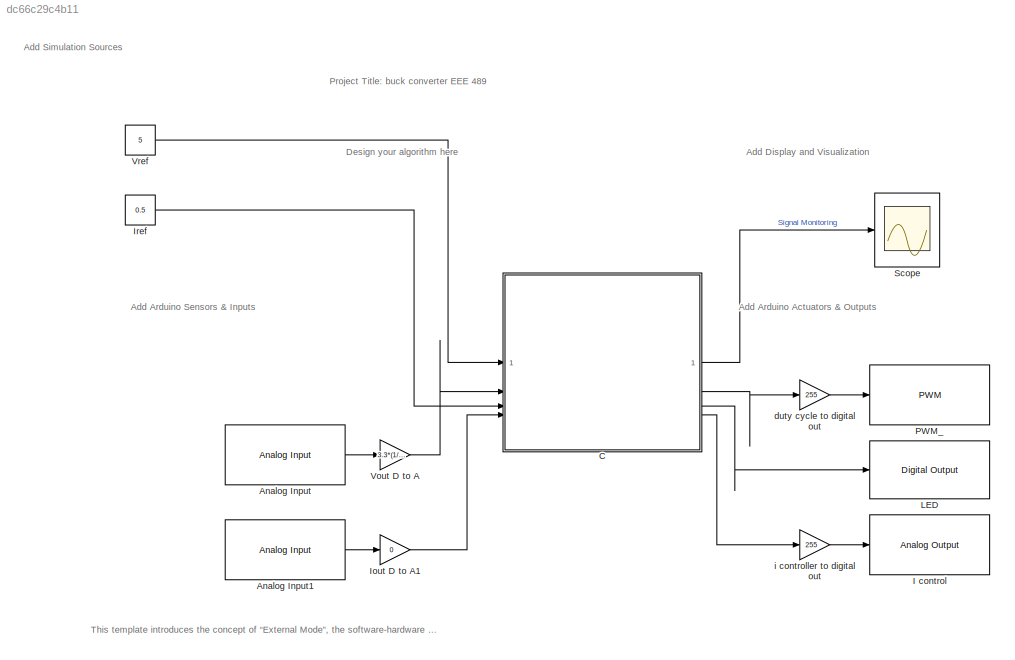
MODEL slx_dc66c29c4b11
KIND model
CONFIG AbsTol = auto
CONFIG EnableMultiTasking = on
CONFIG FixedStep = auto
CONFIG MaxStep = auto
CONFIG MinStep = auto
CONFIG RelTol = 1e-3
CONFIG SampleTimeConstraint = Unconstrained
CONFIG SolverName = ode4
CONFIG StartTime = 0.0
CONFIG StopTime = inf
BLOCK [Reference] Analog Input  REF=arduinolib/Analog Input
  SourceBlock = arduinolib/Analog Input
  SourceType = Arduino Analog Input
BLOCK [Reference] Analog Input1  REF=arduinolib/Analog Input
  Commented = on
  SourceBlock = arduinolib/Analog Input
  SourceType = Arduino Analog Input
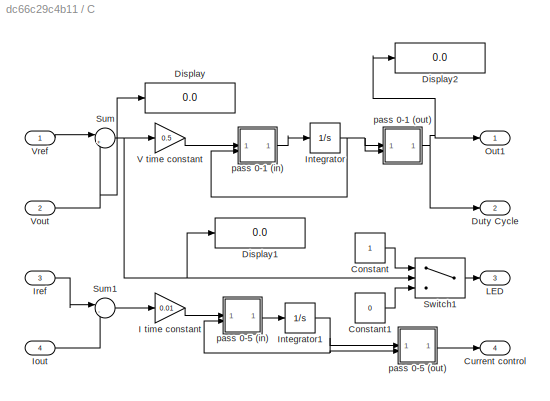
BLOCK [SubSystem] C
BLOCK [Constant] C/Constant
BLOCK [Constant] C/Constant1
  Value = 0
BLOCK [Outport] C/Current control
  Port = 4
  VectorParamsAs1DForOutWhenUnconnected = off
BLOCK [Display] C/Display
  Decimation = 1
BLOCK [Display] C/Display1
  Decimation = 1
BLOCK [Display] C/Display2
  Decimation = 1
BLOCK [Outport] C/Duty Cycle
  Port = 2
  VectorParamsAs1DForOutWhenUnconnected = off
BLOCK [Gain] C/I time constant
  Commented = on
  Gain = 0.01
BLOCK [Integrator] C/Integrator
  InitialCondition = 0.5
BLOCK [Integrator] C/Integrator1
  Commented = on
  InitialCondition = 0.5
BLOCK [Inport] C/Iout
  Port = 4
BLOCK [Inport] C/Iref
  Port = 3
BLOCK [Outport] C/LED
  Port = 3
  VectorParamsAs1DForOutWhenUnconnected = off
BLOCK [Outport] C/Out1
  VectorParamsAs1DForOutWhenUnconnected = off
BLOCK [Sum] C/Sum
  Inputs = |+-
BLOCK [Sum] C/Sum1
  Commented = on
  Inputs = |-+
BLOCK [Switch] C/Switch1
  Criteria = u2 > Threshold
  InputSameDT = off
  SaturateOnIntegerOverflow = off
BLOCK [Gain] C/V time constant
  Gain = 0.5
BLOCK [Inport] C/Vout
  Port = 2
BLOCK [Inport] C/Vref
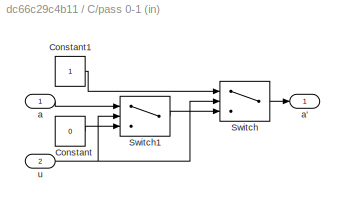
BLOCK [SubSystem] C/pass 0-1 (in)
BLOCK [Constant] C/pass 0-1 (in)/Constant
  Value = 0
BLOCK [Constant] C/pass 0-1 (in)/Constant1
BLOCK [Switch] C/pass 0-1 (in)/Switch
  Criteria = u2 > Threshold
  InputSameDT = off
  SaturateOnIntegerOverflow = off
  Threshold = 1
BLOCK [Switch] C/pass 0-1 (in)/Switch1
  Criteria = u2 > Threshold
  InputSameDT = off
  SaturateOnIntegerOverflow = off
BLOCK [Inport] C/pass 0-1 (in)/a
BLOCK [Outport] C/pass 0-1 (in)/a'
BLOCK [Inport] C/pass 0-1 (in)/u
  Port = 2
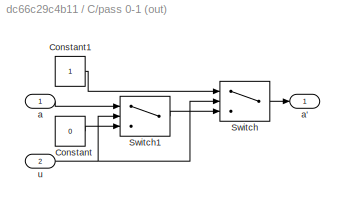
BLOCK [SubSystem] C/pass 0-1 (out)
BLOCK [Constant] C/pass 0-1 (out)/Constant
  Value = 0
BLOCK [Constant] C/pass 0-1 (out)/Constant1
BLOCK [Switch] C/pass 0-1 (out)/Switch
  Criteria = u2 > Threshold
  InputSameDT = off
  SaturateOnIntegerOverflow = off
  Threshold = 1
BLOCK [Switch] C/pass 0-1 (out)/Switch1
  Criteria = u2 > Threshold
  InputSameDT = off
  SaturateOnIntegerOverflow = off
BLOCK [Inport] C/pass 0-1 (out)/a
BLOCK [Outport] C/pass 0-1 (out)/a'
BLOCK [Inport] C/pass 0-1 (out)/u
  Port = 2
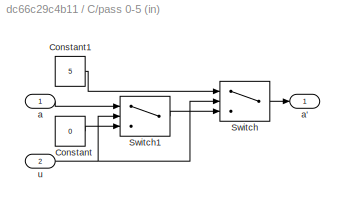
BLOCK [SubSystem] C/pass 0-5 (in)
  Commented = on
BLOCK [Constant] C/pass 0-5 (in)/Constant
  Value = 0
BLOCK [Constant] C/pass 0-5 (in)/Constant1
  Value = 5
BLOCK [Switch] C/pass 0-5 (in)/Switch
  Criteria = u2 > Threshold
  InputSameDT = off
  SaturateOnIntegerOverflow = off
  Threshold = 1
BLOCK [Switch] C/pass 0-5 (in)/Switch1
  Criteria = u2 > Threshold
  InputSameDT = off
  SaturateOnIntegerOverflow = off
BLOCK [Inport] C/pass 0-5 (in)/a
BLOCK [Outport] C/pass 0-5 (in)/a'
BLOCK [Inport] C/pass 0-5 (in)/u
  Port = 2
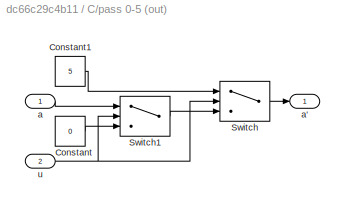
BLOCK [SubSystem] C/pass 0-5 (out)
  Commented = on
BLOCK [Constant] C/pass 0-5 (out)/Constant
  Value = 0
BLOCK [Constant] C/pass 0-5 (out)/Constant1
  Value = 5
BLOCK [Switch] C/pass 0-5 (out)/Switch
  Criteria = u2 > Threshold
  InputSameDT = off
  SaturateOnIntegerOverflow = off
  Threshold = 1
BLOCK [Switch] C/pass 0-5 (out)/Switch1
  Criteria = u2 > Threshold
  InputSameDT = off
  SaturateOnIntegerOverflow = off
BLOCK [Inport] C/pass 0-5 (out)/a
BLOCK [Outport] C/pass 0-5 (out)/a'
BLOCK [Inport] C/pass 0-5 (out)/u
  Port = 2
BLOCK [Reference] I control  REF=arduinolib/Analog Output
  Commented = on
  SourceBlock = arduinolib/Analog Output
  SourceType = Analog Output
BLOCK [Gain] Iout D to A1
  Commented = on
  Gain = 0
BLOCK [Constant] Iref
  Commented = on
  OutDataTypeStr = single
  Value = 0.5
BLOCK [Reference] LED  REF=arduinolib/Digital Output
  SourceBlock = arduinolib/Digital Output
  SourceType = Arduino Digital Output
BLOCK [Reference] PWM_  REF=arduinolib/PWM
  SourceBlock = arduinolib/PWM
  SourceType = Arduino PWM
BLOCK [Scope] Scope
  Floating = off
  NumInputPorts = 1
  ScopeSpecificationString = Simulink.scopes.TimeScopeBlockCfg('CurrentConfiguration', extmgr.ConfigurationSet(extmgr.Configuration('Core','General UI',true),extmgr.Configuration('Core','Source UI',true),extmgr.Configuration('Sources','WiredSimulink',true,'DataLoggingLimitDataPoints',true,'DataLoggingSaveFormat','Array','DataLoggingDecimation','1','DataLoggingDecimateData',true),extmgr.Configuration('Visuals','Time Domain',tr...<+1517ch>
BLOCK [Gain] Vout D to A
  Gain = 3.3*(1/4096)*(1+10/2.7)
BLOCK [Constant] Vref
  OutDataTypeStr = single
  Value = 5
BLOCK [Gain] duty cycle to digital out
  Gain = 255
BLOCK [Gain] i controller to digital out
  Commented = on
  Gain = 255
ANNOTATION (root): Project Title: buck converter EEE 489
ANNOTATION (root): This template introduces the concept of “External Mode”, the software-hardware interaction based on client/server architecture for monitoring live data from target hardware in Simulink. This mode allows to determine the optimal parameter settings by adjusting parameter values on the host computer and observing data/outputs from the target hardware
ANNOTATION (root): Add Arduino Actuators & Outputs
ANNOTATION (root): Add Arduino Sensors & Inputs
ANNOTATION (root): Add Display and Visualization
ANNOTATION (root): Add Simulation Sources
ANNOTATION (root): Design your algorithm here
LINE Analog Input1:1 -> Iout D to A1:1
LINE Analog Input:1 -> Vout D to A:1
LINE C/Constant1:1 -> C/Switch1:3
LINE C/Constant:1 -> C/Switch1:1
LINE C/I time constant:1 -> C/pass 0-5 (in):1
NET C/Integrator1:1 -> C/pass 0-5 (in):2, C/pass 0-5 (out):1, C/pass 0-5 (out):2
NET C/Integrator:1 -> C/pass 0-1 (in):2, C/pass 0-1 (out):1, C/pass 0-1 (out):2
LINE C/Iout:1 -> C/Sum1:2
LINE C/Iref:1 -> C/Sum1:1
LINE C/Sum1:1 -> C/I time constant:1
NET C/Sum:1 -> C/Display1:1, C/Switch1:2, C/V time constant:1
LINE C/Switch1:1 -> C/LED:1
LINE C/V time constant:1 -> C/pass 0-1 (in):1
NET C/Vout:1 -> C/Display:1, C/Sum:2
LINE C/Vref:1 -> C/Sum:1
LINE C/pass 0-1 (in)/Constant1:1 -> C/pass 0-1 (in)/Switch:1
LINE C/pass 0-1 (in)/Constant:1 -> C/pass 0-1 (in)/Switch1:3
LINE C/pass 0-1 (in)/Switch1:1 -> C/pass 0-1 (in)/Switch:3
LINE C/pass 0-1 (in)/Switch:1 -> C/pass 0-1 (in)/a':1
LINE C/pass 0-1 (in)/a:1 -> C/pass 0-1 (in)/Switch1:1
NET C/pass 0-1 (in)/u:1 -> C/pass 0-1 (in)/Switch1:2, C/pass 0-1 (in)/Switch:2
LINE C/pass 0-1 (in):1 -> C/Integrator:1
LINE C/pass 0-1 (out)/Constant1:1 -> C/pass 0-1 (out)/Switch:1
LINE C/pass 0-1 (out)/Constant:1 -> C/pass 0-1 (out)/Switch1:3
LINE C/pass 0-1 (out)/Switch1:1 -> C/pass 0-1 (out)/Switch:3
LINE C/pass 0-1 (out)/Switch:1 -> C/pass 0-1 (out)/a':1
LINE C/pass 0-1 (out)/a:1 -> C/pass 0-1 (out)/Switch1:1
NET C/pass 0-1 (out)/u:1 -> C/pass 0-1 (out)/Switch1:2, C/pass 0-1 (out)/Switch:2
NET C/pass 0-1 (out):1 -> C/Display2:1, C/Duty Cycle:1, C/Out1:1
LINE C/pass 0-5 (in)/Constant1:1 -> C/pass 0-5 (in)/Switch:1
LINE C/pass 0-5 (in)/Constant:1 -> C/pass 0-5 (in)/Switch1:3
LINE C/pass 0-5 (in)/Switch1:1 -> C/pass 0-5 (in)/Switch:3
LINE C/pass 0-5 (in)/Switch:1 -> C/pass 0-5 (in)/a':1
LINE C/pass 0-5 (in)/a:1 -> C/pass 0-5 (in)/Switch1:1
NET C/pass 0-5 (in)/u:1 -> C/pass 0-5 (in)/Switch1:2, C/pass 0-5 (in)/Switch:2
LINE C/pass 0-5 (in):1 -> C/Integrator1:1
LINE C/pass 0-5 (out)/Constant1:1 -> C/pass 0-5 (out)/Switch:1
LINE C/pass 0-5 (out)/Constant:1 -> C/pass 0-5 (out)/Switch1:3
LINE C/pass 0-5 (out)/Switch1:1 -> C/pass 0-5 (out)/Switch:3
LINE C/pass 0-5 (out)/Switch:1 -> C/pass 0-5 (out)/a':1
LINE C/pass 0-5 (out)/a:1 -> C/pass 0-5 (out)/Switch1:1
NET C/pass 0-5 (out)/u:1 -> C/pass 0-5 (out)/Switch1:2, C/pass 0-5 (out)/Switch:2
LINE C/pass 0-5 (out):1 -> C/Current control:1
LINE C:1 -> Scope:1
LINE C:2 -> duty cycle to digital out:1
LINE C:3 -> LED:1
LINE C:4 -> i controller to digital out:1
LINE Iout D to A1:1 -> C:4
LINE Iref:1 -> C:3
LINE Vout D to A:1 -> C:2
LINE Vref:1 -> C:1
LINE duty cycle to digital out:1 -> PWM_:1
LINE i controller to digital out:1 -> I control:1
note: NET lines group one-source signal fan-out (src -> all destinations, sorted); 1:1 wires keep LINE
